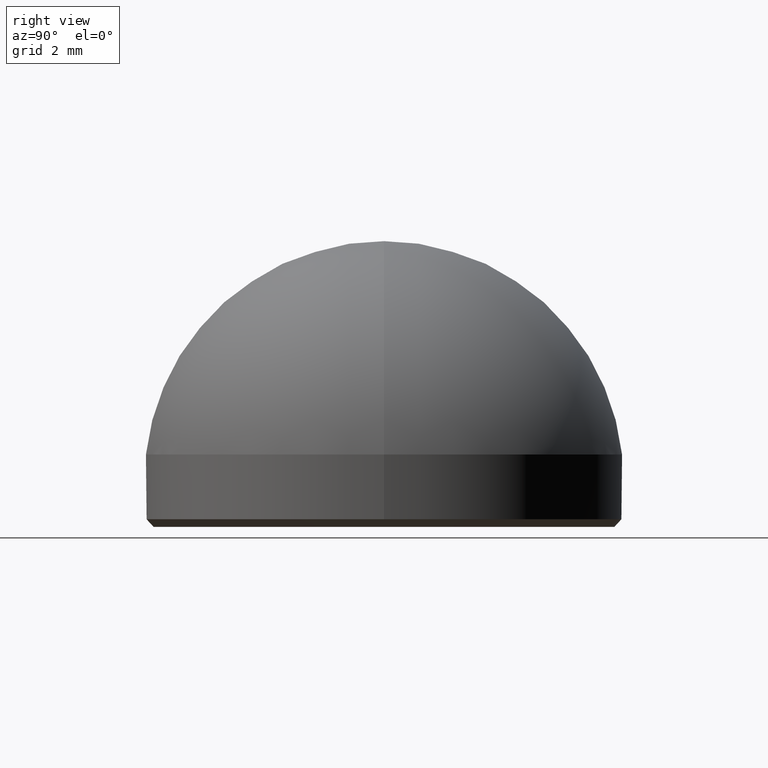
[diagram: clean part render]
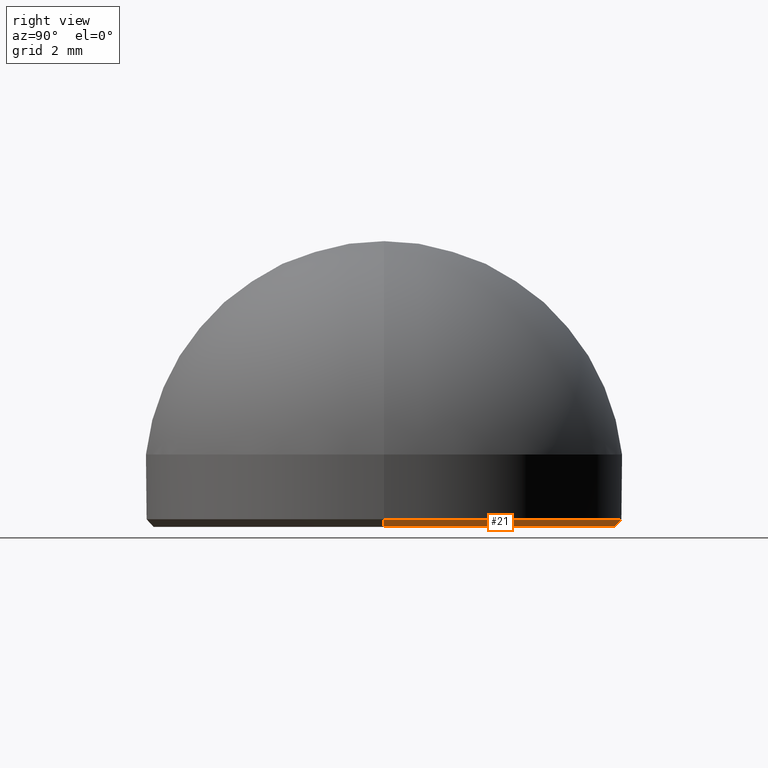
[diagram: same view with one face highlighted and labeled with its STEP entity id]
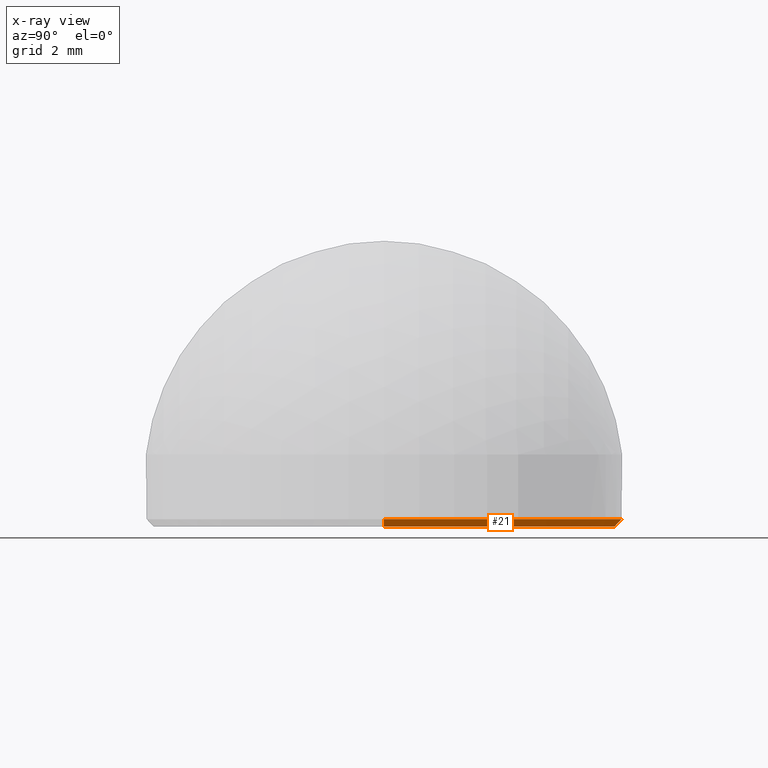
[diagram: x-ray of the same camera — body ghosted, the highlighted face saturated]
A machine part, right view. The second image highlights one B-rep face of the part: STEP entity #21.
The next image is the same camera in x-ray: the body ghosted, the highlighted face saturated — about 0% of this face is hidden behind the body in this view.
In plain terms, the highlighted conical surface has half-angle 45 deg.
Its self-contained STEP definition (entity closure, byte-faithful):
#1 = VERTEX_POINT ( 'NONE', #51 ) ;
#13 = EDGE_CURVE ( 'NONE', #1, #200, #53, .T. ) ;
#19 = AXIS2_PLACEMENT_3D ( 'NONE', #107, #90, #145 ) ;
#21 = ADVANCED_FACE ( 'NONE', ( #30 ), #68, .T. ) ;
#23 = CARTESIAN_POINT ( 'NONE',  ( -6.250000000000000000, 0.000000000000000000, 0.2000000000000083378 ) ) ;
#30 = FACE_OUTER_BOUND ( 'NONE', #196, .T. ) ;
#36 = CARTESIAN_POINT ( 'NONE',  ( 0.000000000000000000, 0.000000000000000000, 0.2000000000000083378 ) ) ;
#39 = DIRECTION ( 'NONE',  ( -0.000000000000000000, -0.000000000000000000, 1.000000000000000000 ) ) ;
#41 = DIRECTION ( 'NONE',  ( 1.000000000000000000, 0.000000000000000000, 0.000000000000000000 ) ) ;
#51 = CARTESIAN_POINT ( 'NONE',  ( 6.250000000000000000, 7.654042494670955634E-16, 0.2000000000000083378 ) ) ;
#53 = CIRCLE ( 'NONE', #204, 6.250000000000000000 ) ;
#54 = DIRECTION ( 'NONE',  ( -0.7071067811865490160, 8.659560562354953812E-17, 0.7071067811865460184 ) ) ;
#58 = CARTESIAN_POINT ( 'NONE',  ( -6.049999999999990941, 7.531577814756217134E-16, 0.000000000000000000 ) ) ;
#63 = AXIS2_PLACEMENT_3D ( 'NONE', #174, #39, #104 ) ;
#65 = VERTEX_POINT ( 'NONE', #58 ) ;
#68 = CONICAL_SURFACE ( 'NONE', #63, 6.250000000000000000, 0.7853981633974504994 ) ;
#72 = VECTOR ( 'NONE', #108, 1000.000000000000114 ) ;
#90 = DIRECTION ( 'NONE',  ( -0.000000000000000000, -0.000000000000000000, -1.000000000000000000 ) ) ;
#92 = DIRECTION ( 'NONE',  ( -0.000000000000000000, -0.000000000000000000, 1.000000000000000000 ) ) ;
#99 = ORIENTED_EDGE ( 'NONE', *, *, #112, .F. ) ;
#104 = DIRECTION ( 'NONE',  ( 1.000000000000000000, 0.000000000000000000, 0.000000000000000000 ) ) ;
#107 = CARTESIAN_POINT ( 'NONE',  ( 0.000000000000000000, 0.000000000000000000, 0.000000000000000000 ) ) ;
#108 = DIRECTION ( 'NONE',  ( 0.7071067811865490160, 0.000000000000000000, 0.7071067811865460184 ) ) ;
#112 = EDGE_CURVE ( 'NONE', #180, #1, #126, .T. ) ;
#116 = ORIENTED_EDGE ( 'NONE', *, *, #178, .F. ) ;
#126 = LINE ( 'NONE', #192, #72 ) ;
#136 = LINE ( 'NONE', #206, #203 ) ;
#145 = DIRECTION ( 'NONE',  ( 1.000000000000000000, 0.000000000000000000, 0.000000000000000000 ) ) ;
#156 = CIRCLE ( 'NONE', #19, 6.049999999999990941 ) ;
#161 = ORIENTED_EDGE ( 'NONE', *, *, #13, .F. ) ;
#174 = CARTESIAN_POINT ( 'NONE',  ( 0.000000000000000000, 0.000000000000000000, 0.2000000000000083378 ) ) ;
#178 = EDGE_CURVE ( 'NONE', #65, #180, #156, .T. ) ;
#180 = VERTEX_POINT ( 'NONE', #195 ) ;
#184 = EDGE_CURVE ( 'NONE', #65, #200, #136, .T. ) ;
#191 = ORIENTED_EDGE ( 'NONE', *, *, #184, .T. ) ;
#192 = CARTESIAN_POINT ( 'NONE',  ( 6.250000000000000000, 0.000000000000000000, 0.2000000000000083378 ) ) ;
#195 = CARTESIAN_POINT ( 'NONE',  ( 6.049999999999990941, 0.000000000000000000, 0.000000000000000000 ) ) ;
#196 = EDGE_LOOP ( 'NONE', ( #116, #191, #161, #99 ) ) ;
#200 = VERTEX_POINT ( 'NONE', #23 ) ;
#203 = VECTOR ( 'NONE', #54, 1000.000000000000114 ) ;
#204 = AXIS2_PLACEMENT_3D ( 'NONE', #36, #92, #41 ) ;
#206 = CARTESIAN_POINT ( 'NONE',  ( -6.250000000000000000, 7.654042494670957606E-16, 0.2000000000000083378 ) ) ;